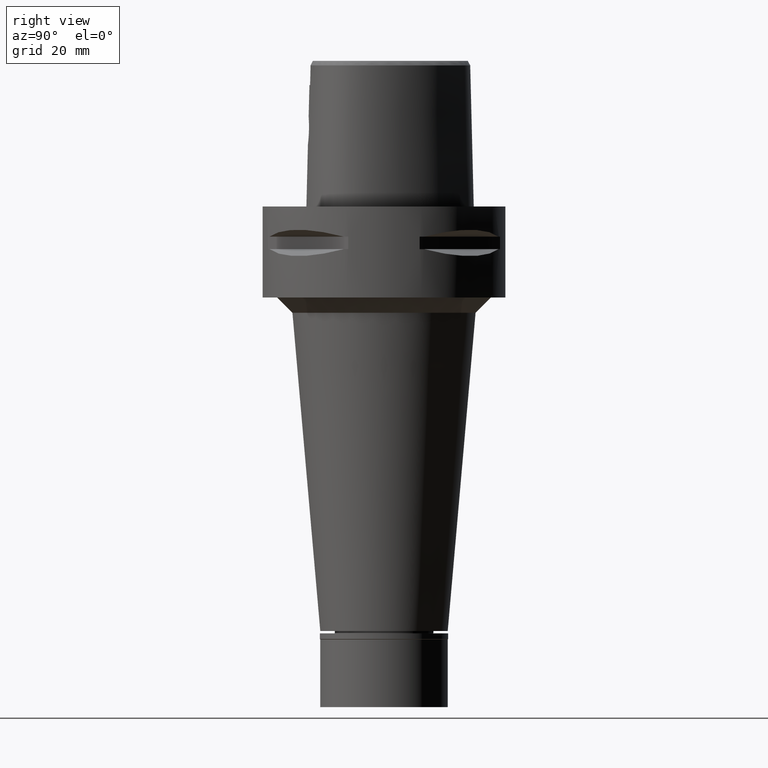
[diagram: clean part render]
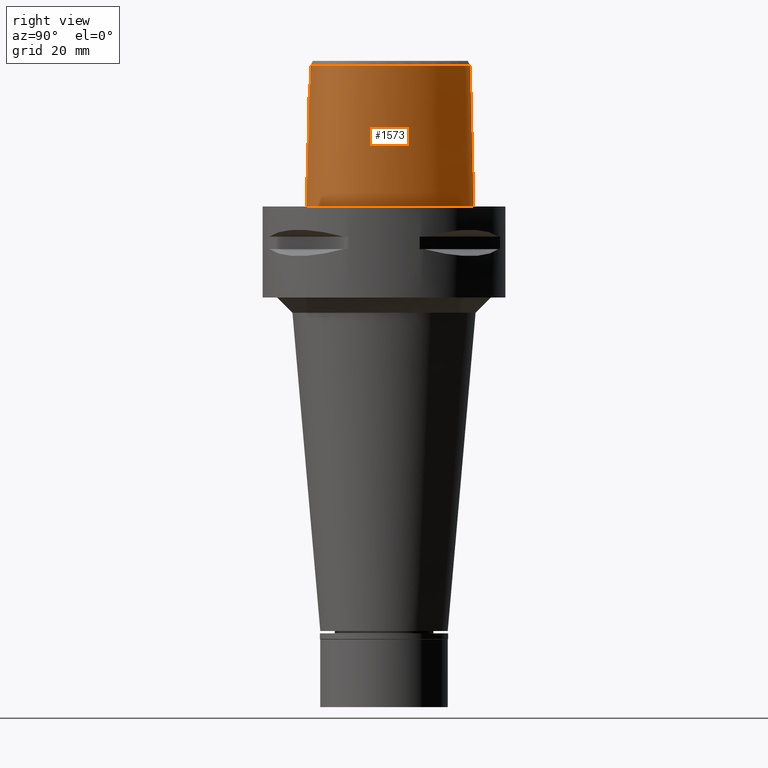
[diagram: same view with one face highlighted and labeled with its STEP entity id]
A machine part, right view. The second image highlights one B-rep face of the part: STEP entity #1573.
In plain terms, the highlighted face is a freeform B-spline surface patch.
Its self-contained STEP definition (entity closure, byte-faithful):
#5 = CARTESIAN_POINT ( 'NONE',  ( 0.2837429639582236263, -25.06378435148999984, 20.45000000000000995 ) ) ;
#34 = CARTESIAN_POINT ( 'NONE',  ( 1.883305297005973822, -24.80958828430723173, 29.14211520707454639 ) ) ;
#56 = CARTESIAN_POINT ( 'NONE',  ( 4.230858595537497102, -24.72073100376794841, 26.67421065539089398 ) ) ;
#69 = CARTESIAN_POINT ( 'NONE',  ( 24.14246363535000128, -15.65707284227000073, 31.32395510900000346 ) ) ;
#76 = VERTEX_POINT ( 'NONE', #3446 ) ;
#79 = CARTESIAN_POINT ( 'NONE',  ( 3.756465253609523991, -24.73852494831097815, 27.57169756947592987 ) ) ;
#99 = CARTESIAN_POINT ( 'NONE',  ( 26.00056139806999767, -13.24168029928000045, 15.19677030041000165 ) ) ;
#108 = CARTESIAN_POINT ( 'NONE',  ( 2.832428424603999240, -24.77719445135583243, 28.56165880794026890 ) ) ;
#122 = CARTESIAN_POINT ( 'NONE',  ( -1.451045074373000022E-08, -24.57504746727000011, 40.00000005214000254 ) ) ;
#124 = CARTESIAN_POINT ( 'NONE',  ( -0.8321552616360000654, -24.38153493006999994, 47.45113991760000260 ) ) ;
#126 = B_SPLINE_CURVE_WITH_KNOTS ( 'NONE', 3,
 ( #3132, #2384, #1136, #5157, #5189, #2742, #3955, #4406, #789, #2413, #4017, #389, #2008, #1448, #336, #5080, #1525, #1420, #3026, #675, #1052, #3102, #1077, #4714, #3506, #3900 ),
 .UNSPECIFIED., .F., .F.,
 ( 4, 2, 2, 2, 2, 2, 2, 2, 2, 2, 2, 2, 4 ),
 ( 0.0000000000000000000, 0.06250000000000002776, 0.1250000000000000555, 0.2500000000000001110, 0.5000000000000002220, 0.5625000000000002220, 0.6250000000000002220, 0.6875000000000003331, 0.7187500000000003331, 0.7500000000000003331, 0.8125000000000002220, 0.8750000000000001110, 1.000000000000000000 ),
 .UNSPECIFIED. ) ;
#135 = CARTESIAN_POINT ( 'NONE',  ( 4.115420520909674806, -24.72394829500694513, 26.95489229166447842 ) ) ;
#151 = CARTESIAN_POINT ( 'NONE',  ( 6.639625074986000186, -24.86795319918000047, 15.19677030041000165 ) ) ;
#154 = CARTESIAN_POINT ( 'NONE',  ( 27.53737518337739232, -1.765624990106963832, -2.615554560859555816E-06 ) ) ;
#180 = CARTESIAN_POINT ( 'NONE',  ( 6.584202213359999334, -24.46732445135999967, 31.32395510900000346 ) ) ;
#205 = CARTESIAN_POINT ( 'NONE',  ( 3.154109046673999828, 29.36302093452000150, -0.9304145081882000401 ) ) ;
#212 = VERTEX_POINT ( 'NONE', #1043 ) ;
#228 = CARTESIAN_POINT ( 'NONE',  ( 12.70057961979000005, 23.45048167901999747, 31.32395510900000346 ) ) ;
#250 = CARTESIAN_POINT ( 'NONE',  ( 17.45811261699000028, 19.27961879876999873, 15.19677030041000165 ) ) ;
#300 = CARTESIAN_POINT ( 'NONE',  ( 0.5741109003602347105, -25.06046598330700093, 20.47661985234780602 ) ) ;
#311 = CARTESIAN_POINT ( 'NONE',  ( -0.5537150974302000872, 28.37988169228000146, 47.45113991760000260 ) ) ;
#336 = CARTESIAN_POINT ( 'NONE',  ( 25.61240997289366916, -12.23358473965760851, 46.52069916262447435 ) ) ;
#346 = VECTOR ( 'NONE', #370, 1000.000000000000114 ) ;
#356 = CARTESIAN_POINT ( 'NONE',  ( 3.739368471908817604, -24.86915408846758879, 22.40675187303093807 ) ) ;
#370 = DIRECTION ( 'NONE',  ( -4.546824724723830332E-13, -0.02499051295420905497, -0.9996876883618630583 ) ) ;
#389 = CARTESIAN_POINT ( 'NONE',  ( 26.66096789088566510, -6.450661550928455945, 46.52070141660806257 ) ) ;
#431 = CARTESIAN_POINT ( 'NONE',  ( 3.996558060055917405, -24.72854169055305817, 27.19514510552228970 ) ) ;
#443 = LINE ( 'NONE', #5162, #346 ) ;
#474 = CARTESIAN_POINT ( 'NONE',  ( 24.46791222524000275, -15.89630653362000068, 15.19677030041000165 ) ) ;
#483 = CARTESIAN_POINT ( 'NONE',  ( 2.087632527488795020, -24.80370565429772611, 29.04349576581762804 ) ) ;
#499 = CARTESIAN_POINT ( 'NONE',  ( 15.01246783760000092, -22.23414196228000250, 31.32395510900000346 ) ) ;
#504 = CARTESIAN_POINT ( 'NONE',  ( 3.149084888634424040, 29.34015631427807591, -2.615554560859555816E-06 ) ) ;
#529 = CARTESIAN_POINT ( 'NONE',  ( 26.79474625850000180, 1.906447387534000004, -0.9304145081882000401 ) ) ;
#536 = ORIENTED_EDGE ( 'NONE', *, *, #4379, .F. ) ;
#538 = CARTESIAN_POINT ( 'NONE',  ( 4.550159243768824524, -24.72595648767379828, 25.28426205013804307 ) ) ;
#552 = CARTESIAN_POINT ( 'NONE',  ( 24.79336081511999978, -16.13554022498000151, -0.9304145081882000401 ) ) ;
#574 = CARTESIAN_POINT ( 'NONE',  ( 20.70054128839999663, -18.64994419820999738, 47.45113991760000260 ) ) ;
#577 = CARTESIAN_POINT ( 'NONE',  ( 17.75297956245375985, 19.52218754174603177, -2.615554560859555816E-06 ) ) ;
#629 = CARTESIAN_POINT ( 'NONE',  ( 12.96695409161999990, 23.75598708931999781, 15.19677030041000165 ) ) ;
#675 = CARTESIAN_POINT ( 'NONE',  ( 21.61408639850616353, -17.89738970854610400, 46.52069634514498375 ) ) ;
#677 = CARTESIAN_POINT ( 'NONE',  ( -0.8299363393743000028, 28.36186519488000002, 47.45113991760000260 ) ) ;
#697 = CARTESIAN_POINT ( 'NONE',  ( 4.043275511985717330, -24.83139551622218377, 22.91194186434569602 ) ) ;
#724 = CARTESIAN_POINT ( 'NONE',  ( 1.732112786591470277, -25.02412118468004110, 20.79259001707700705 ) ) ;
#746 = EDGE_LOOP ( 'NONE', ( #3374, #5069, #4723, #3034, #939, #536, #4324, #1913 ) ) ;
#749 = CARTESIAN_POINT ( 'NONE',  ( 3.205701519810769451, -24.92381821717547297, 21.77105828208774341 ) ) ;
#764 = CARTESIAN_POINT ( 'NONE',  ( 4.472216720976999405, -24.20009030094000124, 46.52069014668999358 ) ) ;
#781 = CARTESIAN_POINT ( 'NONE',  ( 2.697261088263287476, -24.96604596303198065, 21.33198344648555889 ) ) ;
#789 = CARTESIAN_POINT ( 'NONE',  ( 24.48700992948912969, 6.834036305495637009, 46.52070592457529585 ) ) ;
#820 = CARTESIAN_POINT ( 'NONE',  ( 1.372734075386999954E-14, -24.83629963747999980, 29.55000000000000071 ) ) ;
#831 = CARTESIAN_POINT ( 'NONE',  ( 1.779627886571165218, -24.81238721778816014, 29.18772178098349812 ) ) ;
#846 = CARTESIAN_POINT ( 'NONE',  ( -0.8532294277667999971, -25.59082453171000182, -0.9304145081882000401 ) ) ;
#858 = CARTESIAN_POINT ( 'NONE',  ( 3.252660951009045842, -24.76001264346003694, 28.18163816682239897 ) ) ;
#875 = VECTOR ( 'NONE', #1413, 1000.000000000000227 ) ;
#886 = CARTESIAN_POINT ( 'NONE',  ( 2.744259390203956706, -24.78063453097693269, 28.63060330404571019 ) ) ;
#902 = CARTESIAN_POINT ( 'NONE',  ( 15.15935281694000025, -22.61055603243999812, 15.19677030041000165 ) ) ;
#904 = CARTESIAN_POINT ( 'NONE',  ( 11.74025987184633379, -24.13566412572784969, -2.615554560859555816E-06 ) ) ;
#909 = CARTESIAN_POINT ( 'NONE',  ( 4.402195190949106163, -24.71810392633513587, 26.16020714300568883 ) ) ;
#925 = CARTESIAN_POINT ( 'NONE',  ( 26.76156703098000023, -1.884109323998999885, 31.32395510900000346 ) ) ;
#929 = CARTESIAN_POINT ( 'NONE',  ( 26.34912743219603826, -13.39455080755765515, -2.615554560859555816E-06 ) ) ;
#934 = CARTESIAN_POINT ( 'NONE',  ( 4.547962263618206435, -24.73685171198771471, 24.85950514488712670 ) ) ;
#939 = ORIENTED_EDGE ( 'NONE', *, *, #3180, .T. ) ;
#953 = CARTESIAN_POINT ( 'NONE',  ( 24.95856547330000197, -14.40983449413000095, 31.32395510900000346 ) ) ;
#957 = CARTESIAN_POINT ( 'NONE',  ( 27.68378760359820134, -8.751933602002171853, -2.615554560859555816E-06 ) ) ;
#978 = CARTESIAN_POINT ( 'NONE',  ( 18.56135208434000106, -21.47443746759999783, -0.9304145081882000401 ) ) ;
#1001 = CARTESIAN_POINT ( 'NONE',  ( -0.8462047057232000569, -25.18772799783000238, 15.19677030041000165 ) ) ;
#1018 = CARTESIAN_POINT ( 'NONE',  ( -1.365199472858000030E-11, 28.41206021534999593, 46.52071719450999154 ) ) ;
#1034 = CARTESIAN_POINT ( 'NONE',  ( 4.560197243509509057, -24.30012338778693248, 42.17356341699667155 ) ) ;
#1043 = CARTESIAN_POINT ( 'NONE',  ( -1.062146509197000080E-11, -25.57499999999999929, 7.397786087418999296E-14 ) ) ;
#1052 = CARTESIAN_POINT ( 'NONE',  ( 20.45409312013778091, -18.82869992194072140, 46.52069578164908137 ) ) ;
#1053 = CARTESIAN_POINT ( 'NONE',  ( 6.114741919712000318, 27.99897532373000075, 15.19677030041000165 ) ) ;
#1077 = CARTESIAN_POINT ( 'NONE',  ( 16.39076485917926718, -21.20751266143305713, 46.52069409116136711 ) ) ;
#1078 = CARTESIAN_POINT ( 'NONE',  ( -0.6060951003878000121, 29.58848805202999799, -0.9304145081882000401 ) ) ;
#1107 = CARTESIAN_POINT ( 'NONE',  ( 2.892852094178000044, 28.17405733953999913, 47.45113991760000260 ) ) ;
#1136 = CARTESIAN_POINT ( 'NONE',  ( 2.760678900604007335, 28.19254769429744556, 46.52071606750148902 ) ) ;
#1230 = CARTESIAN_POINT ( 'NONE',  ( -4.857856660445162988E-09, -24.74922215084392363, 33.03333351495538750 ) ) ;
#1239 = CARTESIAN_POINT ( 'NONE',  ( 3.606429171763484209, -24.88406245827872354, 22.22480142265789027 ) ) ;
#1241 = CARTESIAN_POINT ( 'NONE',  ( 4.602926386878999132, -24.35121850029999990, 40.00000005214999987 ) ) ;
#1261 = CARTESIAN_POINT ( 'NONE',  ( 4.496850936027443346, -24.75618253903683907, 24.29074513882239117 ) ) ;
#1286 = CARTESIAN_POINT ( 'NONE',  ( 3.237005511789830869, -24.76067832112079614, 28.19756469886729988 ) ) ;
#1305 = CARTESIAN_POINT ( 'NONE',  ( 27.56041892318000208, -1.762105663644000231, -0.9304145081882000401 ) ) ;
#1314 = CARTESIAN_POINT ( 'NONE',  ( 1.813541865601553393, -24.81148519056512214, 29.17313109452835107 ) ) ;
#1324 = EDGE_CURVE ( 'NONE', #5036, #5221, #2542, .T. ) ;
#1328 = CARTESIAN_POINT ( 'NONE',  ( 26.90338675214000119, -8.653104851920000229, 31.32395510900000346 ) ) ;
#1334 = CARTESIAN_POINT ( 'NONE',  ( 4.412773899550447076, -24.77516587915329538, 23.85162301169595978 ) ) ;
#1348 = CARTESIAN_POINT ( 'NONE',  ( -0.5642169922460000819, -25.19264563081999952, 15.19677030041000165 ) ) ;
#1353 = CARTESIAN_POINT ( 'NONE',  ( 21.42129063336978234, -19.59889653668509268, -2.615554560859555816E-06 ) ) ;
#1379 = CARTESIAN_POINT ( 'NONE',  ( -0.8391799836796000056, -24.78463146395000294, 31.32395510900000346 ) ) ;
#1382 = CARTESIAN_POINT ( 'NONE',  ( 22.33885471454291505, 12.89734378282808258, -2.615554560859555816E-06 ) ) ;
#1400 = CARTESIAN_POINT ( 'NONE',  ( 11.74634101503999872, -24.15815461169999878, -0.9304145081882000401 ) ) ;
#1413 = DIRECTION ( 'NONE',  ( 9.163261710875221440E-13, 0.02499051293976060906, -0.9996876883622242138 ) ) ;
#1420 = CARTESIAN_POINT ( 'NONE',  ( 23.53784508590211644, -15.81022840325134027, 46.52069747213676720 ) ) ;
#1448 = CARTESIAN_POINT ( 'NONE',  ( 26.04423705949256274, -10.88022456237770363, 46.52069972612036963 ) ) ;
#1451 = CARTESIAN_POINT ( 'NONE',  ( 22.35908247836000129, 12.90902243090000034, -0.9304145081882000401 ) ) ;
#1460 = B_SPLINE_CURVE_WITH_KNOTS ( 'NONE', 3,
 ( #2925, #3310, #2574, #904, #4959, #2597, #1353, #2619, #2981, #4570, #929, #2521, #957, #4542, #154, #4912, #4520, #1382, #577, #4129, #4155, #4180, #504, #3802, #4616 ),
 .UNSPECIFIED., .F., .F.,
 ( 4, 1, 1, 1, 1, 1, 1, 1, 1, 1, 1, 1, 1, 1, 1, 1, 1, 1, 1, 1, 1, 1, 4 ),
 ( 0.0000000000000000000, 0.08333333333340001148, 0.1250000000000000000, 0.1666666666667000196, 0.2083333333333000081, 0.2500000000000000000, 0.2916666666666999919, 0.3124999999998999689, 0.3333333333332000326, 0.3541666666666000163, 0.3749999999998999689, 0.4166666666666000163, 0.4583333333332000326, 0.4999999999997999933, 0.5416666666664999852, 0.5833333333331000015, 0.6666666666664000651, 0.7499999999997000177, 0.8333333333329999704, 0.8749999999995999866, 0.9166666666663000340, 0.9583333333329000503, 1.000000000000000000 ),
 .UNSPECIFIED. ) ;
#1475 = CARTESIAN_POINT ( 'NONE',  ( 5.801139417498999862, 27.25218155928000030, 47.45113991760000260 ) ) ;
#1480 = CARTESIAN_POINT ( 'NONE',  ( 4.516620373932790145, -24.24973711153631939, 44.34712678184333612 ) ) ;
#1510 = B_SPLINE_CURVE_WITH_KNOTS ( 'NONE', 3,
 ( #3122, #5, #300, #4426, #4736, #4395, #2735, #4344, #4789, #2002, #1575, #1598, #724, #3605, #2427, #1549, #781, #3980, #2406, #4010, #4035, #2758, #4370, #1624, #749, #1977, #3240, #4845, #1239, #4316, #356, #2376, #3582, #697, #2323, #2525, #2450, #3659, #3737, #1334, #1261, #4475, #3709, #3264, #934, #2161, #4058, #538, #4919, #3759, #909, #4161, #4503, #2884, #56, #2551, #2929, #4450, #135, #431, #79, #1751, #3358, #2055, #4086, #3287, #4547, #858, #1286, #4964, #2505, #2480, #108, #886, #4939, #1706, #2840, #1731, #4110, #483, #3336, #34, #1314, #831, #1652, #3316, #4867 ),
 .UNSPECIFIED., .F., .F.,
 ( 4, 2, 2, 1, 1, 1, 1, 2, 2, 2, 2, 2, 1, 1, 2, 2, 2, 2, 2, 2, 1, 2, 2, 2, 2, 1, 2, 2, 2, 2, 1, 1, 1, 2, 2, 2, 2, 2, 1, 1, 2, 2, 2, 1, 2, 2, 2, 1, 2, 2, 4 ),
 ( 0.0000000000000000000, 0.06250000000002538247, 0.09375000000003803902, 0.1093750000000442701, 0.1171875000000472816, 0.1210937500000487804, 0.1230468750000494882, 0.1240234375000497102, 0.1250000000000499323, 0.1875000000000514311, 0.2187500000000523470, 0.2343750000000525413, 0.2421875000000526801, 0.2460937500000525413, 0.2480468750000522360, 0.2500000000000519584, 0.2812500000000475175, 0.2968750000000450195, 0.3125000000000425215, 0.3437500000000369704, 0.3593750000000341394, 0.3671875000000328071, 0.3750000000000314748, 0.4375000000000242029, 0.4687500000000208722, 0.4843750000000192624, 0.4921875000000180411, 0.5000000000000167644, 0.5625000000000033307, 0.5937499999999965583, 0.6093749999999932276, 0.6171874999999918954, 0.6210937499999915623, 0.6230468749999916733, 0.6249999999999917843, 0.6874999999999993339, 0.7187500000000031086, 0.7343750000000047740, 0.7421875000000053291, 0.7460937500000057732, 0.7480468750000059952, 0.7500000000000062172, 0.7812500000000057732, 0.7968750000000053291, 0.8046875000000051070, 0.8125000000000047740, 0.8437500000000036637, 0.8593750000000033307, 0.8671875000000031086, 0.8750000000000029976, 1.000000000000000000 ),
 .UNSPECIFIED. ) ;
#1525 = CARTESIAN_POINT ( 'NONE',  ( 24.33934953590626549, -14.68006085516615578, 46.52069803563268380 ) ) ;
#1526 = CARTESIAN_POINT ( 'NONE',  ( 24.48145222267000065, 6.531540494242000783, 31.32395510900000346 ) ) ;
#1549 = CARTESIAN_POINT ( 'NONE',  ( 2.568983978575527960, -24.97528315391627629, 21.24168007027966709 ) ) ;
#1573 = ADVANCED_FACE ( 'NONE', ( #4418 ), #3741, .T. ) ;
#1575 = CARTESIAN_POINT ( 'NONE',  ( 1.717599865387960945, -25.02478947459729497, 20.78664336873063689 ) ) ;
#1598 = CARTESIAN_POINT ( 'NONE',  ( 1.726554843533326444, -25.02437791916834797, 20.79030502623837151 ) ) ;
#1602 = CARTESIAN_POINT ( 'NONE',  ( 1.541632511944811768, -24.57506718866618556, 40.00000010061345534 ) ) ;
#1624 = CARTESIAN_POINT ( 'NONE',  ( 3.196341748948787309, -24.92467674393287780, 21.76178677583657262 ) ) ;
#1652 = CARTESIAN_POINT ( 'NONE',  ( 1.153626000806933893, -24.82864766317860727, 29.44729853102900208 ) ) ;
#1696 = CARTESIAN_POINT ( 'NONE',  ( 25.65830880232000055, -14.81383149398999954, -0.9304145081882000401 ) ) ;
#1706 = CARTESIAN_POINT ( 'NONE',  ( 2.592678685480169332, -24.78641481269938041, 28.73923899945254234 ) ) ;
#1724 = CARTESIAN_POINT ( 'NONE',  ( 26.34453530922999676, -11.19579296923000022, 31.32395510900000346 ) ) ;
#1731 = CARTESIAN_POINT ( 'NONE',  ( 2.410767390551869838, -24.79324877274664374, 28.86155595109452321 ) ) ;
#1745 = CARTESIAN_POINT ( 'NONE',  ( 6.695047936612000150, -25.26858194698999682, -0.9304145081882000401 ) ) ;
#1751 = CARTESIAN_POINT ( 'NONE',  ( 3.666127388007985211, -24.74236822830340898, 27.69981209002247269 ) ) ;
#1770 = CARTESIAN_POINT ( 'NONE',  ( 20.94550183659000098, -18.97246392945000082, 31.32395510900000346 ) ) ;
#1801 = CARTESIAN_POINT ( 'NONE',  ( 21.19046238477000088, -19.29498366070000159, 15.19677030041000165 ) ) ;
#1826 = CARTESIAN_POINT ( 'NONE',  ( 0.7047156100450000515, 28.82388502800000296, 31.32395510900000346 ) ) ;
#1831 = EDGE_CURVE ( 'NONE', #5212, #212, #443, .T. ) ;
#1878 = CARTESIAN_POINT ( 'NONE',  ( 6.271543170818000057, 28.37237220595000053, -0.9304145081882000401 ) ) ;
#1884 = CARTESIAN_POINT ( 'NONE',  ( 4.602926386878999132, -24.35121850029999990, 40.00000005214999987 ) ) ;
#1913 = ORIENTED_EDGE ( 'NONE', *, *, #2853, .T. ) ;
#1928 = CARTESIAN_POINT ( 'NONE',  ( 12.43420514796000020, 23.14497626870999980, 47.45113991760000260 ) ) ;
#1977 = CARTESIAN_POINT ( 'NONE',  ( 3.317903692991634568, -24.91347842919924460, 21.88291014845622229 ) ) ;
#2002 = CARTESIAN_POINT ( 'NONE',  ( 1.704163054238227337, -25.02540437729527767, 20.78117410887984207 ) ) ;
#2008 = CARTESIAN_POINT ( 'NONE',  ( 26.56868348264380941, -7.988862950300141819, 46.52070085311216729 ) ) ;
#2055 = CARTESIAN_POINT ( 'NONE',  ( 3.458990831518582887, -24.75121472495278852, 27.95724070546313911 ) ) ;
#2098 = CARTESIAN_POINT ( 'NONE',  ( 15.30623779628000136, -22.98697010260999818, -0.9304145081882000401 ) ) ;
#2125 = CARTESIAN_POINT ( 'NONE',  ( 11.53552745835999893, -23.37848223953000115, 31.32395510900000346 ) ) ;
#2154 = CARTESIAN_POINT ( 'NONE',  ( 25.63065465001999854, -13.07945040004999981, 31.32395510900000346 ) ) ;
#2161 = CARTESIAN_POINT ( 'NONE',  ( 4.549574022937136419, -24.73494683104329894, 24.92875559373500849 ) ) ;
#2177 = CARTESIAN_POINT ( 'NONE',  ( 27.30517725596999767, -8.703986976427000144, 15.19677030041000165 ) ) ;
#2199 = EDGE_CURVE ( 'NONE', #5036, #3315, #3414, .T. ) ;
#2203 = CARTESIAN_POINT ( 'NONE',  ( 23.15870204184999892, -17.49879693322000307, 15.19677030041000165 ) ) ;
#2235 = CARTESIAN_POINT ( 'NONE',  ( 21.30723580296000108, 12.30173102396000040, 47.45113991760000260 ) ) ;
#2262 = CARTESIAN_POINT ( 'NONE',  ( 4.602926386878999132, -24.35121850029999990, 40.00000005214999987 ) ) ;
#2281 = CARTESIAN_POINT ( 'NONE',  ( -0.8562942210960000633, 28.76413530217000059, 31.32395510900000346 ) ) ;
#2323 = CARTESIAN_POINT ( 'NONE',  ( 4.094115463356531315, -24.82458451489044648, 23.01236396665055395 ) ) ;
#2334 = CARTESIAN_POINT ( 'NONE',  ( 9.105791459234000129, 26.46675913453999840, 15.19677030041000165 ) ) ;
#2376 = CARTESIAN_POINT ( 'NONE',  ( 3.861082105068343928, -24.85463631592319089, 22.58840412903447969 ) ) ;
#2384 = CARTESIAN_POINT ( 'NONE',  ( 1.375467128702822839, 28.41206022877558013, 46.52071663099741272 ) ) ;
#2406 = CARTESIAN_POINT ( 'NONE',  ( 2.955264688595856448, -24.94567926532505098, 21.53931554467317966 ) ) ;
#2413 = CARTESIAN_POINT ( 'NONE',  ( 26.30769162470723188, -1.593520748816229959, 46.52070310709579104 ) ) ;
#2419 = CARTESIAN_POINT ( 'NONE',  ( -1.451045074373000022E-08, -24.57504746727000011, 40.00000005214000254 ) ) ;
#2427 = CARTESIAN_POINT ( 'NONE',  ( 2.192364263562802229, -25.00047163865142608, 21.00192190657860181 ) ) ;
#2450 = CARTESIAN_POINT ( 'NONE',  ( 4.172398775497943468, -24.81348664747049426, 23.18477895935446043 ) ) ;
#2480 = CARTESIAN_POINT ( 'NONE',  ( 3.005270379491385313, -24.77034733848117654, 28.41951852237777132 ) ) ;
#2505 = CARTESIAN_POINT ( 'NONE',  ( 3.115833847008502744, -24.76582665838807529, 28.31908668410239116 ) ) ;
#2519 = CARTESIAN_POINT ( 'NONE',  ( 2.334473170719999935, -24.41160993196999840, 47.45113991760000260 ) ) ;
#2521 = CARTESIAN_POINT ( 'NONE',  ( 27.10051723682900970, -11.41106447110289857, -2.615554560859555816E-06 ) ) ;
#2525 = CARTESIAN_POINT ( 'NONE',  ( 4.141553595740861127, -24.81790787904084894, 23.11546483668120189 ) ) ;
#2540 = CARTESIAN_POINT ( 'NONE',  ( 26.36214108487999752, -1.945111154176999868, 47.45113991760000260 ) ) ;
#2542 = B_SPLINE_CURVE_WITH_KNOTS ( 'NONE', 3,
 ( #1884, #1034, #1480, #4722 ),
 .UNSPECIFIED., .F., .F.,
 ( 4, 4 ),
 ( 0.0000000000000000000, 1.000000000000000000 ),
 .UNSPECIFIED. ) ;
#2551 = CARTESIAN_POINT ( 'NONE',  ( 4.220110851308562339, -24.72101730040709455, 26.70095761995016659 ) ) ;
#2570 = CARTESIAN_POINT ( 'NONE',  ( 26.37046814612999768, -13.40391019850999932, -0.9304145081882000401 ) ) ;
#2574 = CARTESIAN_POINT ( 'NONE',  ( 6.691850472814394379, -25.24546881497613526, -2.615554560859555816E-06 ) ) ;
#2595 = CARTESIAN_POINT ( 'NONE',  ( 2.354169165278999998, -24.81494117447000036, 31.32395510900000346 ) ) ;
#2597 = CARTESIAN_POINT ( 'NONE',  ( 18.55019652219029069, -21.45394537010966118, -2.615554560859555816E-06 ) ) ;
#2614 = CARTESIAN_POINT ( 'NONE',  ( 8.894849800790998628, 26.12169676201999735, 31.32395510900000346 ) ) ;
#2619 = CARTESIAN_POINT ( 'NONE',  ( 23.43253033460889512, -17.76420414724952224, -2.615554560859555816E-06 ) ) ;
#2687 = CARTESIAN_POINT ( 'NONE',  ( 0.7484115208156000287, 29.63215901995000223, -0.9304145081882000401 ) ) ;
#2717 = CARTESIAN_POINT ( 'NONE',  ( 25.62380423760999903, 1.595558235750000220, 47.45113991760000260 ) ) ;
#2731 = VERTEX_POINT ( 'NONE', #4390 ) ;
#2735 = CARTESIAN_POINT ( 'NONE',  ( 1.483723097879261488, -25.03485232889443779, 20.69751684277333581 ) ) ;
#2742 = CARTESIAN_POINT ( 'NONE',  ( 10.99875819582603853, 24.38035098656273192, 46.52071268652608893 ) ) ;
#2758 = CARTESIAN_POINT ( 'NONE',  ( 3.156365463049251030, -24.92830912253907627, 21.72269515073157109 ) ) ;
#2840 = CARTESIAN_POINT ( 'NONE',  ( 2.560989721140065178, -24.78761092133460053, 28.76100236095895823 ) ) ;
#2853 = EDGE_CURVE ( 'NONE', #212, #4865, #1460, .T. ) ;
#2884 = CARTESIAN_POINT ( 'NONE',  ( 4.255303340875725482, -24.72011691775872322, 26.61166571686906224 ) ) ;
#2900 = CARTESIAN_POINT ( 'NONE',  ( 27.16099297707999938, -1.823107493821999991, 15.19677030041000165 ) ) ;
#2923 = CARTESIAN_POINT ( 'NONE',  ( 26.66520864606999908, -5.367805583522999413, 47.45113991760000260 ) ) ;
#2925 = CARTESIAN_POINT ( 'NONE',  ( -1.062146509197000080E-11, -25.57499999999999929, 7.397786087418999296E-14 ) ) ;
#2929 = CARTESIAN_POINT ( 'NONE',  ( 4.212885333431653834, -24.72121330192672772, 26.71877560767986992 ) ) ;
#2947 = CARTESIAN_POINT ( 'NONE',  ( 22.86810880159999826, -17.21714034641000168, 31.32395510900000346 ) ) ;
#2977 = CARTESIAN_POINT ( 'NONE',  ( 25.30843713781000304, -14.61183299406000025, 15.19677030041000165 ) ) ;
#2981 = CARTESIAN_POINT ( 'NONE',  ( 24.77458498771682116, -16.12173832004732787, -2.615554560859555816E-06 ) ) ;
#3001 = CARTESIAN_POINT ( 'NONE',  ( 11.43012068001999815, -22.98864605345000456, 47.45113991760000260 ) ) ;
#3026 = CARTESIAN_POINT ( 'NONE',  ( 23.08984995680400587, -16.35075897049237881, 46.52069719038880891 ) ) ;
#3027 = CARTESIAN_POINT ( 'NONE',  ( -0.5711750984160999245, 28.78275047887000326, 31.32395510900000346 ) ) ;
#3034 = ORIENTED_EDGE ( 'NONE', *, *, #2199, .T. ) ;
#3055 = CARTESIAN_POINT ( 'NONE',  ( -0.9090099845392000111, 29.56867551674999817, -0.9304145081882000401 ) ) ;
#3080 = CARTESIAN_POINT ( 'NONE',  ( 26.01411824456999966, 1.699187953011999985, 31.32395510900000346 ) ) ;
#3102 = CARTESIAN_POINT ( 'NONE',  ( 17.84219066874116066, -20.48406917474725475, 46.52069465465727660 ) ) ;
#3122 = CARTESIAN_POINT ( 'NONE',  ( -1.320303668946000038E-12, -25.06378435148999984, 20.44999999999999929 ) ) ;
#3132 = CARTESIAN_POINT ( 'NONE',  ( -1.365199472858000030E-11, 28.41206021534999593, 46.52071719450999154 ) ) ;
#3180 = EDGE_CURVE ( 'NONE', #3315, #2731, #3916, .T. ) ;
#3240 = CARTESIAN_POINT ( 'NONE',  ( 3.418326490944837648, -24.90370471633881522, 21.99337763265234003 ) ) ;
#3264 = CARTESIAN_POINT ( 'NONE',  ( 4.544345534604902426, -24.73984392723382442, 24.75509518057811675 ) ) ;
#3287 = CARTESIAN_POINT ( 'NONE',  ( 3.329382130121249617, -24.75674668230317366, 28.10179055163160911 ) ) ;
#3306 = CARTESIAN_POINT ( 'NONE',  ( 27.06950057463999926, -5.357664960363999640, 31.32395510900000346 ) ) ;
#3310 = CARTESIAN_POINT ( 'NONE',  ( 2.676740189104370948, -25.57500006538097637, -2.615554560859555816E-06 ) ) ;
#3315 = VERTEX_POINT ( 'NONE', #122 ) ;
#3316 = CARTESIAN_POINT ( 'NONE',  ( 0.5545157691314849258, -24.83629963747999625, 29.55000000000000071 ) ) ;
#3333 = CARTESIAN_POINT ( 'NONE',  ( -0.5595330818692999530, -24.78951208301999998, 31.32395510900000346 ) ) ;
#3336 = CARTESIAN_POINT ( 'NONE',  ( 1.986969619755052818, -24.80670454267324132, 29.09445024140585190 ) ) ;
#3351 = CARTESIAN_POINT ( 'NONE',  ( 6.528779351733999370, -24.06669570354000243, 47.45113991760000260 ) ) ;
#3358 = CARTESIAN_POINT ( 'NONE',  ( 3.512978482356082566, -24.74890643940174684, 27.89278862330737496 ) ) ;
#3374 = ORIENTED_EDGE ( 'NONE', *, *, #4002, .F. ) ;
#3376 = CARTESIAN_POINT ( 'NONE',  ( 23.81701504545999981, -15.41783915090999812, 47.45113991760000260 ) ) ;
#3405 = CARTESIAN_POINT ( 'NONE',  ( 27.70696775981000215, -8.754869100932999970, -0.9304145081882000401 ) ) ;
#3414 = B_SPLINE_CURVE_WITH_KNOTS ( 'NONE', 3,
 ( #1241, #5210, #1602, #4740 ),
 .UNSPECIFIED., .F., .F.,
 ( 4, 4 ),
 ( 0.0000000000000000000, 1.000000000000000000 ),
 .UNSPECIFIED. ) ;
#3420 = LINE ( 'NONE', #1018, #875 ) ;
#3426 = CARTESIAN_POINT ( 'NONE',  ( 16.83227267719999887, 18.76477910636999979, 47.45113991760000260 ) ) ;
#3446 = CARTESIAN_POINT ( 'NONE',  ( -1.365199472858000030E-11, 28.41206021534999593, 46.52071719450999154 ) ) ;
#3483 = CARTESIAN_POINT ( 'NONE',  ( 26.40443225153000029, 1.802817670273000106, 15.19677030041000165 ) ) ;
#3506 = CARTESIAN_POINT ( 'NONE',  ( 8.153873202540015797, -23.84765792154528441, 46.52069127368186230 ) ) ;
#3532 = CARTESIAN_POINT ( 'NONE',  ( 3.067023395841999900, 28.96669973620000249, 15.19677030041000165 ) ) ;
#3582 = CARTESIAN_POINT ( 'NONE',  ( 3.937353243876851927, -24.84519667286184230, 22.71482954515106911 ) ) ;
#3605 = CARTESIAN_POINT ( 'NONE',  ( 1.952635857148956156, -25.01389984458452886, 20.88358337726614167 ) ) ;
#3659 = CARTESIAN_POINT ( 'NONE',  ( 4.186622009782691833, -24.81141158316100714, 23.21777758281324111 ) ) ;
#3698 = CARTESIAN_POINT ( 'NONE',  ( 23.44929528211000047, -17.78045352003999824, -0.9304145081882000401 ) ) ;
#3709 = CARTESIAN_POINT ( 'NONE',  ( 4.537017841949596786, -24.74324082396831770, 24.64916680774927826 ) ) ;
#3727 = CARTESIAN_POINT ( 'NONE',  ( 18.36798846350000147, -21.11924011257999823, 15.19677030041000165 ) ) ;
#3737 = CARTESIAN_POINT ( 'NONE',  ( 4.325577297008603495, -24.79069917425946556, 23.55238152012433517 ) ) ;
#3741 = B_SPLINE_SURFACE_WITH_KNOTS ( 'NONE', 3, 3, ( 
 ( #846, #1001, #1379, #124 ),
 ( #4518, #1348, #3333, #3773 ),
 ( #4909, #4983, #2595, #2519 ),
 ( #1745, #151, #180, #3351 ),
 ( #1400, #4127, #2125, #3001 ),
 ( #2098, #902, #499, #4613 ),
 ( #978, #3727, #4956, #4103 ),
 ( #4934, #1801, #1770, #574 ),
 ( #3698, #2203, #2947, #4567 ),
 ( #552, #474, #69, #3376 ),
 ( #1696, #2977, #953, #3753 ),
 ( #2570, #99, #2154, #4150 ),
 ( #4199, #4176, #1724, #4592 ),
 ( #3405, #2177, #1328, #3798 ),
 ( #5007, #4540, #3306, #2923 ),
 ( #1305, #2900, #925, #2540 ),
 ( #529, #3483, #3080, #2717 ),
 ( #4224, #5081, #1526, #5132 ),
 ( #1451, #4294, #3847, #2235 ),
 ( #4715, #250, #4751, #3426 ),
 ( #3902, #629, #228, #1928 ),
 ( #4670, #2334, #2614, #4329 ),
 ( #1878, #1053, #5054, #1475 ),
 ( #205, #3532, #3825, #1107 ),
 ( #2687, #4640, #1826, #4690 ),
 ( #1078, #5103, #3027, #311 ),
 ( #3055, #5029, #2281, #677 ) ),
 .UNSPECIFIED., .F., .F., .F.,
 ( 4, 1, 1, 1, 1, 1, 1, 1, 1, 1, 1, 1, 1, 1, 1, 1, 1, 1, 1, 1, 1, 1, 1, 1, 4 ),
 ( 4, 4 ),
 ( -0.008851417483014999837, 0.0000000000000000000, 0.08333333333340001148, 0.1250000000000000000, 0.1666666666667000196, 0.2083333333333000081, 0.2500000000000000000, 0.2916666666666999919, 0.3124999999998999689, 0.3333333333332000326, 0.3541666666666000163, 0.3749999999998999689, 0.4166666666666000163, 0.4583333333332000326, 0.4999999999997999933, 0.5416666666664999852, 0.5833333333331000015, 0.6666666666664000651, 0.7499999999997000177, 0.8333333333329999704, 0.8749999999995999866, 0.9166666666663000340, 0.9583333333329000503, 1.000000000000000000, 1.012009199036000062 ),
 ( 4.573187210865999975E-09, 0.9999997667675999402 ),
 .UNSPECIFIED. ) ;
#3753 = CARTESIAN_POINT ( 'NONE',  ( 24.60869380878000356, -14.20783599419999987, 47.45113991760000260 ) ) ;
#3759 = CARTESIAN_POINT ( 'NONE',  ( 4.437987378314521614, -24.71842636459932763, 26.01433587876356057 ) ) ;
#3773 = CARTESIAN_POINT ( 'NONE',  ( -0.5548491714926999663, -24.38637853522000043, 47.45113991760000260 ) ) ;
#3798 = CARTESIAN_POINT ( 'NONE',  ( 26.50159624830000027, -8.602222727414000403, 47.45113991760000260 ) ) ;
#3802 = CARTESIAN_POINT ( 'NONE',  ( 1.049694963040647133, 29.57500006538069570, -2.615554560859555816E-06 ) ) ;
#3825 = CARTESIAN_POINT ( 'NONE',  ( 2.979937745009999528, 28.57037853786999904, 31.32395510900000346 ) ) ;
#3847 = CARTESIAN_POINT ( 'NONE',  ( 21.65785136142999789, 12.50416149294000157, 31.32395510900000346 ) ) ;
#3900 = CARTESIAN_POINT ( 'NONE',  ( 4.472216720976999405, -24.20009030094000124, 46.52069014668999358 ) ) ;
#3902 = CARTESIAN_POINT ( 'NONE',  ( 13.23332856345000152, 24.06149249962999903, -0.9304145081882000401 ) ) ;
#3916 = B_SPLINE_CURVE_WITH_KNOTS ( 'NONE', 3,
 ( #2419, #4441, #1230, #820 ),
 .UNSPECIFIED., .F., .F.,
 ( 4, 4 ),
 ( 0.0000000000000000000, 1.000000000000000000 ),
 .UNSPECIFIED. ) ;
#3955 = CARTESIAN_POINT ( 'NONE',  ( 13.63304938779917741, 22.11238814014319942, 46.52071155953430548 ) ) ;
#3980 = CARTESIAN_POINT ( 'NONE',  ( 2.890648186344424442, -24.95092863274664552, 21.48525694160121446 ) ) ;
#4002 = EDGE_CURVE ( 'NONE', #76, #4865, #3420, .T. ) ;
#4010 = CARTESIAN_POINT ( 'NONE',  ( 3.051956606892459956, -24.93748982820294557, 21.62510482542109003 ) ) ;
#4017 = CARTESIAN_POINT ( 'NONE',  ( 26.53043812451394956, -3.252830914798699347, 46.52070254359988155 ) ) ;
#4035 = CARTESIAN_POINT ( 'NONE',  ( 3.100243586358356396, -24.93331626314446936, 21.66917441973406966 ) ) ;
#4058 = CARTESIAN_POINT ( 'NONE',  ( 4.549979298456324983, -24.73407938846014886, 24.96161245961963715 ) ) ;
#4086 = CARTESIAN_POINT ( 'NONE',  ( 3.373359712600710214, -24.75487047605681212, 28.05365220515483671 ) ) ;
#4103 = CARTESIAN_POINT ( 'NONE',  ( 17.98126122184000053, -20.40884540254999990, 47.45113991760000260 ) ) ;
#4110 = CARTESIAN_POINT ( 'NONE',  ( 2.284825071824842624, -24.79755434855802321, 28.93755567620546287 ) ) ;
#4127 = CARTESIAN_POINT ( 'NONE',  ( 11.64093423669999972, -23.76831842561999864, 15.19677030041000165 ) ) ;
#4129 = CARTESIAN_POINT ( 'NONE',  ( 13.21796084866120857, 24.04386723704450901, -2.615554560859555816E-06 ) ) ;
#4150 = CARTESIAN_POINT ( 'NONE',  ( 25.26074790196000208, -12.91722050081000006, 47.45113991760000260 ) ) ;
#4155 = CARTESIAN_POINT ( 'NONE',  ( 9.304563440824123788, 26.79191411846420579, -2.615554560859555816E-06 ) ) ;
#4161 = CARTESIAN_POINT ( 'NONE',  ( 4.337077477085154342, -24.71860659089775680, 26.37767366826650317 ) ) ;
#4176 = CARTESIAN_POINT ( 'NONE',  ( 26.73375369490000253, -11.30662581242000009, 15.19677030041000165 ) ) ;
#4180 = CARTESIAN_POINT ( 'NONE',  ( 6.262496970223146775, 28.35083013868822377, -2.615554560859555816E-06 ) ) ;
#4199 = CARTESIAN_POINT ( 'NONE',  ( 27.12297208056999764, -11.41745865561999906, -0.9304145081882000401 ) ) ;
#4224 = CARTESIAN_POINT ( 'NONE',  ( 25.23075706254999773, 6.836210430863999932, -0.9304145081882000401 ) ) ;
#4272 = CARTESIAN_POINT ( 'NONE',  ( -1.320303668946000038E-12, -25.06378435148999984, 20.44999999999999929 ) ) ;
#4294 = CARTESIAN_POINT ( 'NONE',  ( 22.00846691988999737, 12.70659196191999918, 15.19677030041000165 ) ) ;
#4316 = CARTESIAN_POINT ( 'NONE',  ( 3.695416430653654771, -24.87420445000563163, 22.34444809527598963 ) ) ;
#4324 = ORIENTED_EDGE ( 'NONE', *, *, #1831, .T. ) ;
#4329 = CARTESIAN_POINT ( 'NONE',  ( 8.683908142348000680, 25.77663438949999986, 47.45113991760000260 ) ) ;
#4344 = CARTESIAN_POINT ( 'NONE',  ( 1.609901483195961047, -25.02958960435420366, 20.74402583924836563 ) ) ;
#4370 = CARTESIAN_POINT ( 'NONE',  ( 3.180359783743104796, -24.92613363770020740, 21.74608895217317794 ) ) ;
#4379 = EDGE_CURVE ( 'NONE', #5212, #2731, #1510, .T. ) ;
#4390 = CARTESIAN_POINT ( 'NONE',  ( 1.372734075386999954E-14, -24.83629963747999980, 29.55000000000000071 ) ) ;
#4395 = CARTESIAN_POINT ( 'NONE',  ( 1.374979210355941284, -25.03889659011747426, 20.66206490747215696 ) ) ;
#4406 = CARTESIAN_POINT ( 'NONE',  ( 20.76159157986996817, 13.99289103072767126, 46.52070817855886986 ) ) ;
#4418 = FACE_OUTER_BOUND ( 'NONE', #746, .T. ) ;
#4426 = CARTESIAN_POINT ( 'NONE',  ( 1.011135947186544648, -25.05051087875798288, 20.56129276502394632 ) ) ;
#4441 = CARTESIAN_POINT ( 'NONE',  ( -4.849066423321180062E-09, -24.66214466420278129, 36.51666702991063573 ) ) ;
#4450 = CARTESIAN_POINT ( 'NONE',  ( 4.208386412724382630, -24.72133790640165074, 26.72975093107536537 ) ) ;
#4475 = CARTESIAN_POINT ( 'NONE',  ( 4.517116520650368727, -24.75057419275515613, 24.43553773670625517 ) ) ;
#4503 = CARTESIAN_POINT ( 'NONE',  ( 4.301663164392376615, -24.71910450366880951, 26.48607042045374271 ) ) ;
#4518 = CARTESIAN_POINT ( 'NONE',  ( -0.5689009026226999888, -25.59577917862999996, -0.9304145081882000401 ) ) ;
#4520 = CARTESIAN_POINT ( 'NONE',  ( 25.20914256062338410, 6.827421899706039632, -2.615554560859555816E-06 ) ) ;
#4540 = CARTESIAN_POINT ( 'NONE',  ( 27.47379250321000299, -5.347524337205999068, 15.19677030041000165 ) ) ;
#4542 = CARTESIAN_POINT ( 'NONE',  ( 27.85475996300868218, -5.337968748354785298, -2.615554560859555816E-06 ) ) ;
#4547 = CARTESIAN_POINT ( 'NONE',  ( 3.275992991613311478, -24.75902016830570673, 28.15772619067946891 ) ) ;
#4567 = CARTESIAN_POINT ( 'NONE',  ( 22.57751556133999671, -16.93548375958999941, 47.45113991760000260 ) ) ;
#4570 = CARTESIAN_POINT ( 'NONE',  ( 25.63812395534148791, -14.80217776713936750, -2.615554560859555816E-06 ) ) ;
#4592 = CARTESIAN_POINT ( 'NONE',  ( 25.95531692356000164, -11.08496012602999947, 47.45113991760000260 ) ) ;
#4600 = EDGE_CURVE ( 'NONE', #76, #5221, #126, .T. ) ;
#4613 = CARTESIAN_POINT ( 'NONE',  ( 14.86558285826999892, -21.85772789211999978, 47.45113991760000260 ) ) ;
#4616 = CARTESIAN_POINT ( 'NONE',  ( 2.898947336125000164E-11, 29.57499999998999840, 6.761258219967000121E-14 ) ) ;
#4640 = CARTESIAN_POINT ( 'NONE',  ( 0.7265635654302999846, 29.22802202397999949, 15.19677030041000165 ) ) ;
#4670 = CARTESIAN_POINT ( 'NONE',  ( 9.316733117676999854, 26.81182150707000034, -0.9304145081882000401 ) ) ;
#4690 = CARTESIAN_POINT ( 'NONE',  ( 0.6828676546595999763, 28.41974803203000022, 47.45113991760000260 ) ) ;
#4714 = CARTESIAN_POINT ( 'NONE',  ( 11.70978320535625805, -23.05272019185333932, 46.52069240067365996 ) ) ;
#4715 = CARTESIAN_POINT ( 'NONE',  ( 17.77103258688999787, 19.53703864496999998, -0.9304145081882000401 ) ) ;
#4722 = CARTESIAN_POINT ( 'NONE',  ( 4.472216720976999405, -24.20009030094000124, 46.52069014668999358 ) ) ;
#4723 = ORIENTED_EDGE ( 'NONE', *, *, #1324, .F. ) ;
#4736 = CARTESIAN_POINT ( 'NONE',  ( 1.157035249405714339, -25.04636291852922270, 20.59695966232250086 ) ) ;
#4740 = CARTESIAN_POINT ( 'NONE',  ( -1.451045074373000022E-08, -24.57504746727000011, 40.00000005214000254 ) ) ;
#4751 = CARTESIAN_POINT ( 'NONE',  ( 17.14519264710000357, 19.02219895256999749, 31.32395510900000346 ) ) ;
#4789 = CARTESIAN_POINT ( 'NONE',  ( 1.672780685868158645, -25.02682213713908510, 20.76857498625373211 ) ) ;
#4832 = CARTESIAN_POINT ( 'NONE',  ( 2.898947336125000164E-11, 29.57499999998999840, 6.761258219967000121E-14 ) ) ;
#4845 = CARTESIAN_POINT ( 'NONE',  ( 3.560464869664928145, -24.88898092548868490, 22.16607190872553801 ) ) ;
#4865 = VERTEX_POINT ( 'NONE', #4832 ) ;
#4867 = CARTESIAN_POINT ( 'NONE',  ( 1.372734075386999954E-14, -24.83629963747999980, 29.55000000000000071 ) ) ;
#4909 = CARTESIAN_POINT ( 'NONE',  ( 2.393561154397000124, -25.62160365948000162, -0.9304145081882000401 ) ) ;
#4912 = CARTESIAN_POINT ( 'NONE',  ( 26.77222820601555853, 1.900468766806686416, -2.615554560859555816E-06 ) ) ;
#4919 = CARTESIAN_POINT ( 'NONE',  ( 4.523121810469494797, -24.72136632330973072, 25.57645994462696848 ) ) ;
#4934 = CARTESIAN_POINT ( 'NONE',  ( 21.43542293296000167, -19.61750339194999881, -0.9304145081882000401 ) ) ;
#4939 = CARTESIAN_POINT ( 'NONE',  ( 2.653628212346457182, -24.78409939537364792, 28.69623435022847957 ) ) ;
#4956 = CARTESIAN_POINT ( 'NONE',  ( 18.17462484266999923, -20.76404275756999951, 31.32395510900000346 ) ) ;
#4959 = CARTESIAN_POINT ( 'NONE',  ( 15.29776368667878295, -22.96525396730199731, -2.615554560859555816E-06 ) ) ;
#4964 = CARTESIAN_POINT ( 'NONE',  ( 3.227783996390868992, -24.76107025147647178, 28.20686722736789420 ) ) ;
#4983 = CARTESIAN_POINT ( 'NONE',  ( 2.373865159838000061, -25.21827241697999966, 15.19677030041000165 ) ) ;
#5007 = CARTESIAN_POINT ( 'NONE',  ( 27.87808443177999962, -5.337383714047999383, -0.9304145081882000401 ) ) ;
#5029 = CARTESIAN_POINT ( 'NONE',  ( -0.8826521028175999817, 29.16640540946000115, 15.19677030041000165 ) ) ;
#5036 = VERTEX_POINT ( 'NONE', #2262 ) ;
#5054 = CARTESIAN_POINT ( 'NONE',  ( 5.957940668605999690, 27.62557844151000097, 31.32395510900000346 ) ) ;
#5069 = ORIENTED_EDGE ( 'NONE', *, *, #4600, .T. ) ;
#5080 = CARTESIAN_POINT ( 'NONE',  ( 24.69258566271309263, -14.08975149522114734, 46.52069831738062078 ) ) ;
#5081 = CARTESIAN_POINT ( 'NONE',  ( 24.85610464260999919, 6.683875462552999913, 15.19677030041000165 ) ) ;
#5103 = CARTESIAN_POINT ( 'NONE',  ( -0.5886350994019000638, 29.18561926544999707, 15.19677030041000165 ) ) ;
#5132 = CARTESIAN_POINT ( 'NONE',  ( 24.10679980272000122, 6.379205525930999876, 47.45113991760000260 ) ) ;
#5157 = CARTESIAN_POINT ( 'NONE',  ( 5.530043876417711779, 27.35846726635982407, 46.52071494050973399 ) ) ;
#5162 = CARTESIAN_POINT ( 'NONE',  ( -1.320303668946000038E-12, -25.06378435148999984, 20.44999999999999929 ) ) ;
#5189 = CARTESIAN_POINT ( 'NONE',  ( 6.913370730853021229, 26.74336904842582285, 46.52071437701380319 ) ) ;
#5210 = CARTESIAN_POINT ( 'NONE',  ( 3.083107003973187155, -24.50056602138517192, 40.00000010061345534 ) ) ;
#5212 = VERTEX_POINT ( 'NONE', #4272 ) ;
#5221 = VERTEX_POINT ( 'NONE', #764 ) ;